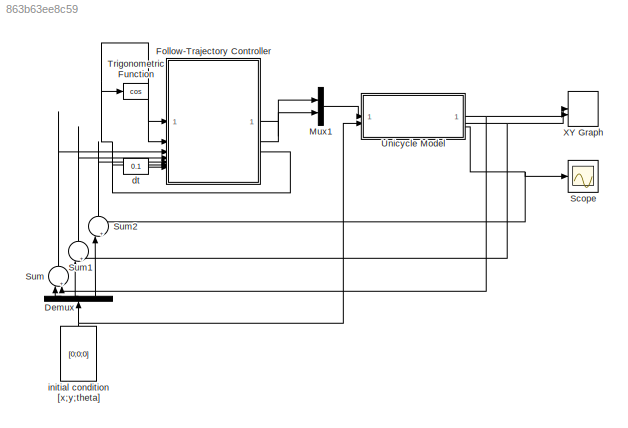
MODEL slx_863b63ee8c59
KIND model
CONFIG AbsTol = auto
CONFIG EnableMultiTasking = off
CONFIG FixedStep = auto
CONFIG MaxStep = auto
CONFIG MinStep = auto
CONFIG RelTol = 1e-3
CONFIG SampleTimeConstraint = Unconstrained
CONFIG SolverName = VariableStepAuto
CONFIG StartTime = 0.0
CONFIG StopTime = 50.0
WORKSPACE source: mxarray member
WORKSPACE t: Simulink.Parameter (value not decoded)
BLOCK [Demux] Demux
  NameLocation = right
  Outputs = 3
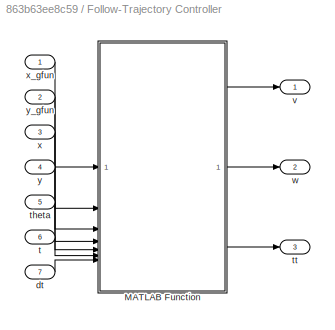
BLOCK [SubSystem] Follow-Trajectory Controller
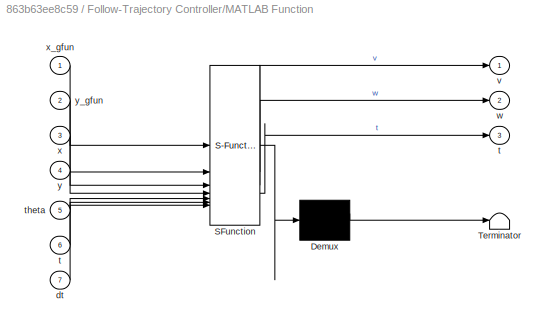
BLOCK [SubSystem] Follow-Trajectory Controller/MATLAB Function
  ErrorFcn = Stateflow.Translate.translate
  PermitHierarchicalResolution = ExplicitOnly
  SFBlockType = MATLAB Function
  TreatAsAtomicUnit = on
BLOCK [Demux] Follow-Trajectory Controller/MATLAB Function/ Demux 
  Outputs = 1
BLOCK [S-Function] Follow-Trajectory Controller/MATLAB Function/ SFunction 
  EnableBusSupport = on
  FunctionName = sf_sfun
  PortCounts = [7 4]
  SFcnIsStateOwnerBlock = off
  SFunctionDeploymentMode = off
  Tag = Stateflow S-Function 2
BLOCK [Terminator] Follow-Trajectory Controller/MATLAB Function/ Terminator 
BLOCK [Inport] Follow-Trajectory Controller/MATLAB Function/dt
  Port = 7
BLOCK [Outport] Follow-Trajectory Controller/MATLAB Function/t
  Port = 3
BLOCK [Inport] Follow-Trajectory Controller/MATLAB Function/t 
  Port = 6
BLOCK [Inport] Follow-Trajectory Controller/MATLAB Function/theta
  Port = 5
BLOCK [Outport] Follow-Trajectory Controller/MATLAB Function/v
BLOCK [Outport] Follow-Trajectory Controller/MATLAB Function/w
  Port = 2
BLOCK [Inport] Follow-Trajectory Controller/MATLAB Function/x
  Port = 3
BLOCK [Inport] Follow-Trajectory Controller/MATLAB Function/x_gfun
BLOCK [Inport] Follow-Trajectory Controller/MATLAB Function/y
  Port = 4
BLOCK [Inport] Follow-Trajectory Controller/MATLAB Function/y_gfun
  Port = 2
BLOCK [Inport] Follow-Trajectory Controller/dt
  Port = 7
BLOCK [Inport] Follow-Trajectory Controller/t
  Port = 6
BLOCK [Inport] Follow-Trajectory Controller/theta
  Port = 5
BLOCK [Outport] Follow-Trajectory Controller/tt
  Port = 3
BLOCK [Outport] Follow-Trajectory Controller/v
BLOCK [Outport] Follow-Trajectory Controller/w
  Port = 2
BLOCK [Inport] Follow-Trajectory Controller/x
  Port = 3
BLOCK [Inport] Follow-Trajectory Controller/x_gfun
BLOCK [Inport] Follow-Trajectory Controller/y
  Port = 4
BLOCK [Inport] Follow-Trajectory Controller/y_gfun
  Port = 2
BLOCK [Mux] Mux1
  DisplayOption = bar
  Inputs = 2
BLOCK [Scope] Scope
  Floating = off
  NumInputPorts = 1
  ScopeSpecificationString = Simulink.scopes.TimeScopeBlockCfg('CurrentConfiguration', extmgr.ConfigurationSet(extmgr.Configuration('Core','General UI',true),extmgr.Configuration('Core','Source UI',true),extmgr.Configuration('Sources','WiredSimulink',true),extmgr.Configuration('Visuals','Time Domain',true),extmgr.Configuration('Tools','Plot Navigation',true),extmgr.Configuration('Tools','Measurements',true)),'Version','2023b'...<+1ch>
BLOCK [Sum] Sum
  Inputs = |++
  NameLocation = right
BLOCK [Sum] Sum1
  Inputs = |++
  NameLocation = right
BLOCK [Sum] Sum2
  Inputs = |++
  NameLocation = right
BLOCK [Trigonometry] Trigonometric Function
  Operator = cos
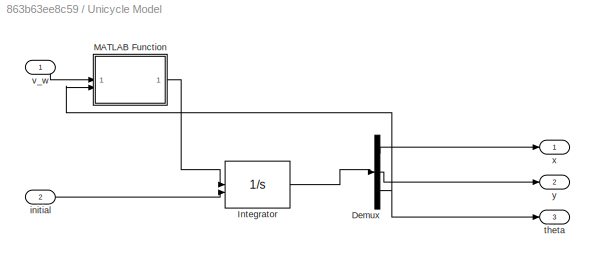
BLOCK [SubSystem] Unicycle Model
BLOCK [Demux] Unicycle Model/Demux
  Outputs = 3
BLOCK [Integrator] Unicycle Model/Integrator
  InitialConditionSource = external
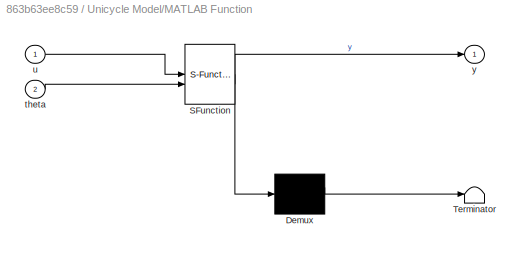
BLOCK [SubSystem] Unicycle Model/MATLAB Function
  ErrorFcn = Stateflow.Translate.translate
  PermitHierarchicalResolution = ExplicitOnly
  SFBlockType = MATLAB Function
  TreatAsAtomicUnit = on
BLOCK [Demux] Unicycle Model/MATLAB Function/ Demux 
  Outputs = 1
BLOCK [S-Function] Unicycle Model/MATLAB Function/ SFunction 
  EnableBusSupport = on
  FunctionName = sf_sfun
  PortCounts = [2 2]
  SFcnIsStateOwnerBlock = off
  SFunctionDeploymentMode = off
  Tag = Stateflow S-Function 1
BLOCK [Terminator] Unicycle Model/MATLAB Function/ Terminator 
BLOCK [Inport] Unicycle Model/MATLAB Function/theta
  Port = 2
BLOCK [Inport] Unicycle Model/MATLAB Function/u
BLOCK [Outport] Unicycle Model/MATLAB Function/y
BLOCK [Inport] Unicycle Model/initial
  Port = 2
BLOCK [Outport] Unicycle Model/theta
  Port = 3
BLOCK [Inport] Unicycle Model/v_w
BLOCK [Outport] Unicycle Model/x
BLOCK [Outport] Unicycle Model/y
  Port = 2
BLOCK [Record] XY Graph
  CompatibilityTag = XY
  FileSettingsInternal = {"entries":[{"content":{"excelSettings":{"content":{},"type":"Streamout.ExcelSettings"}},"type":"Streamout.FileSettingStorage","uuid":""}],"packageUris":["http:\/\/schema.mathworks.com\/mf0\/streamout_blocks\/R2020a"],"version":"1.0"}
  Layout = [1 1]
  SignalsInternal = {"entries":[{"content":{"signals":[{"content":{"blockPath":[],"dimensions":[1],"domain":"","lineColor":"#a2142f","plots":[1],"port":1,"signalID":8,"signalName":"XY Graph:1"},"type":"RecordBlkView.Signal","uuid":""},{"content":{"blockPath":[],"dimensions":[1],"domain":"","lineColor":"#139fff","plots":[1],"port":2,"signalID":11,"signalName":"XY Graph:2"},"type":"RecordBlkView.Signal","uuid":""}]},"t...<+141ch>
  VisualizationBindings = {"xyplotplugin":{"info":[{"series":[{"bindingParametersList":[{"parameter":"X-Axis","signalID":8,"signalName":"XY Graph:1"},{"parameter":"Y-Axis","signalID":11,"signalName":"XY Graph:2"}],"seriesID":38499}],"subplotID":1}]}}
  st = -1
BLOCK [Constant] dt
  Value = 0.1
BLOCK [Constant] initial condition [x;y;theta]
  NameLocation = right
  Value = [0;0;0]
LINE Demux:1 -> Sum:1
LINE Demux:2 -> Sum1:1
LINE Demux:3 -> Sum2:1
LINE Follow-Trajectory Controller/MATLAB Function:1 -> Follow-Trajectory Controller/v:1
LINE Follow-Trajectory Controller/MATLAB Function:2 -> Follow-Trajectory Controller/w:1
LINE Follow-Trajectory Controller/MATLAB Function:3 -> Follow-Trajectory Controller/tt:1
LINE Follow-Trajectory Controller/dt:1 -> Follow-Trajectory Controller/MATLAB Function:7
LINE Follow-Trajectory Controller/t:1 -> Follow-Trajectory Controller/MATLAB Function:6
LINE Follow-Trajectory Controller/theta:1 -> Follow-Trajectory Controller/MATLAB Function:5
LINE Follow-Trajectory Controller/x:1 -> Follow-Trajectory Controller/MATLAB Function:3
LINE Follow-Trajectory Controller/x_gfun:1 -> Follow-Trajectory Controller/MATLAB Function:1
LINE Follow-Trajectory Controller/y:1 -> Follow-Trajectory Controller/MATLAB Function:4
LINE Follow-Trajectory Controller/y_gfun:1 -> Follow-Trajectory Controller/MATLAB Function:2
LINE Follow-Trajectory Controller:1 -> Mux1:1
LINE Follow-Trajectory Controller:2 -> Mux1:2
NET Follow-Trajectory Controller:3 -> Follow-Trajectory Controller:1, Follow-Trajectory Controller:6, Trigonometric Function:1
LINE Mux1:1 -> Unicycle Model:1
LINE Sum1:1 -> Follow-Trajectory Controller:4
LINE Sum2:1 -> Follow-Trajectory Controller:5
LINE Sum:1 -> Follow-Trajectory Controller:3
LINE Trigonometric Function:1 -> Follow-Trajectory Controller:2
LINE Unicycle Model/Demux:1 -> Unicycle Model/x:1
LINE Unicycle Model/Demux:2 -> Unicycle Model/y:1
NET Unicycle Model/Demux:3 -> Unicycle Model/MATLAB Function:2, Unicycle Model/theta:1
LINE Unicycle Model/Integrator:1 -> Unicycle Model/Demux:1
LINE Unicycle Model/MATLAB Function:1 -> Unicycle Model/Integrator:1
LINE Unicycle Model/initial:1 -> Unicycle Model/Integrator:2
LINE Unicycle Model/v_w:1 -> Unicycle Model/MATLAB Function:1
NET Unicycle Model:1 -> Sum:2, XY Graph:1
NET Unicycle Model:2 -> Sum1:2, XY Graph:2
NET Unicycle Model:3 -> Scope:1, Sum2:2
LINE dt:1 -> Follow-Trajectory Controller:7
NET initial condition [x;y;theta]:1 -> Demux:1, Unicycle Model:2
note: NET lines group one-source signal fan-out (src -> all destinations, sorted); 1:1 wires keep LINE
CHART Unicycle Model/MATLAB Function states=1 transitions=1
  STATE_LABEL 'eML_blk_kernel()'
  STATE_LABEL 'SCRIPT:\nfunction y = fcn(u, theta)\n\n\nv = u(1);\nw = u(2);\n\ny = [v*cos(theta); v*sin(theta); w];\n'
CHART Follow-Trajectory Controller/MATLAB Function states=1 transitions=1
  STATE_LABEL 'eML_blk_kernel()'
  STATE_LABEL 'SCRIPT:\nfunction [v,w,t]= fcn(x_gfun, y_gfun, x, y, theta,t ,dt)\n\nKv = 1.0;\nKi = 1.0;\nKh = 1.0;\n\nt = t + dt;\n\nx_g = x_gfun;\ny_g = y_gfun;\n\n% Hız ve dönüş açısı hesaplama\ne = sqrt((x_g - x)^2 + (y_g - y)^2) - d;\nvt = Kv * e + Ki * (e*t - e*(t-dt)); %integral(e,t-dt,t);\ntheta_g = atan2(y_g - y, x_g - x);\nwt = Kh * (atan2(sin(theta_g - theta), cos(theta_g - theta)));\n\nv = vt;\nw = wt;'
CHART  states=0 transitions=0
CHART  states=0 transitions=0
